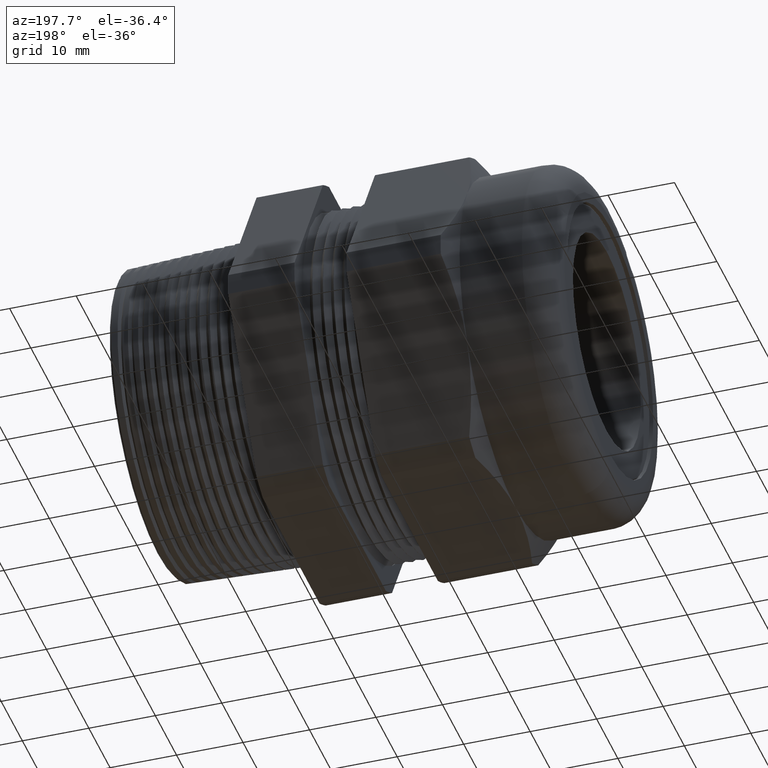
[diagram: clean part render]
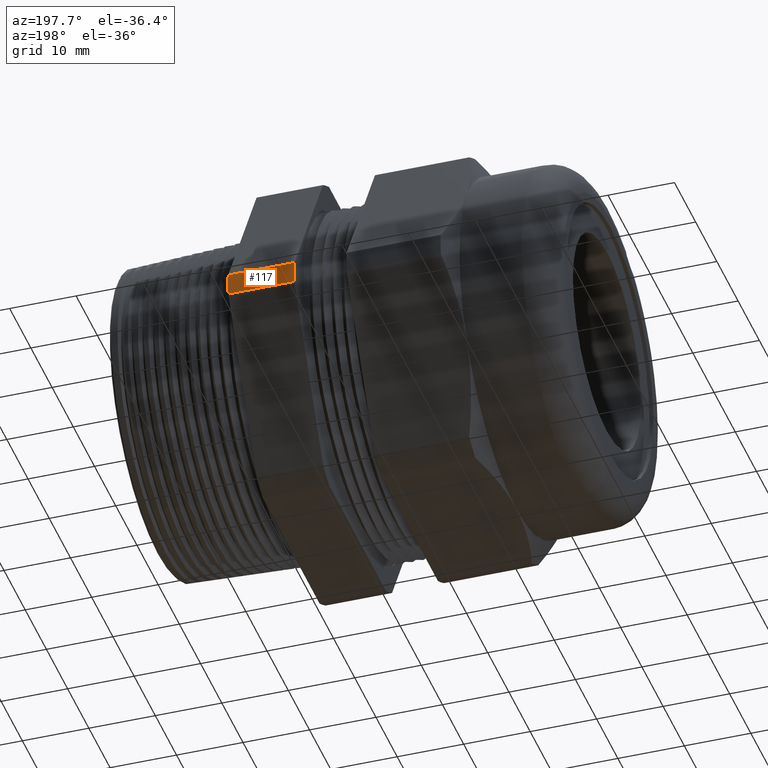
[diagram: same view with one face highlighted and labeled with its STEP entity id]
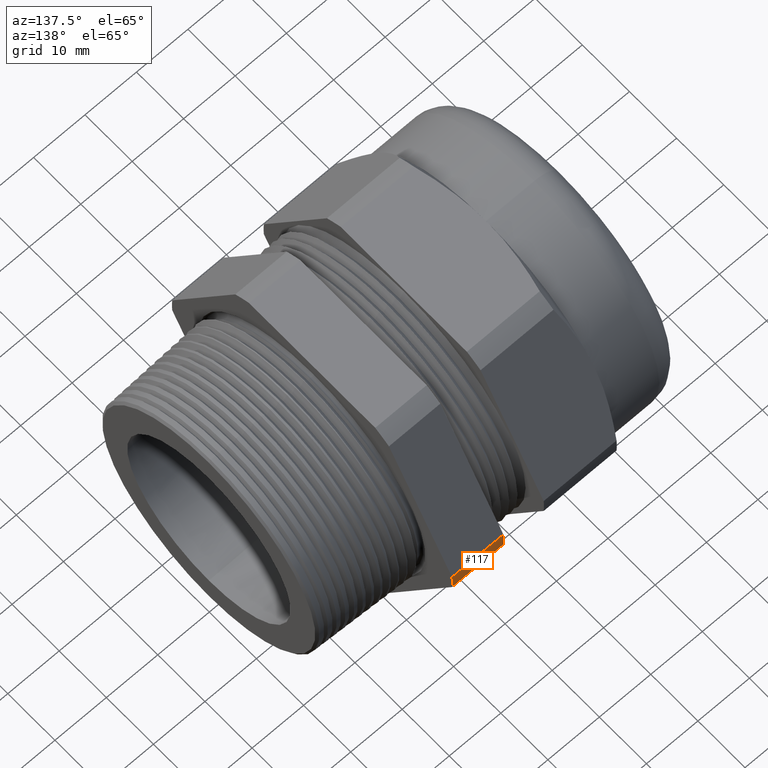
[diagram: same view with one face highlighted and labeled with its STEP entity id]
A machine part, auxiliary view. The second image highlights one B-rep face of the part: STEP entity #117.
A second angle (auxiliary view) of the same face is appended — the face is thin or edge-on in the first view.
In plain terms, the highlighted cylindrical surface (partial cylindrical patch) has radius 29.7282 mm, axis along (-1, 0, 0).
Its self-contained STEP definition (entity closure, byte-faithful):
#58 = EDGE_LOOP ( 'NONE', ( #119, #116, #114, #102 ) ) ;
#102 = ORIENTED_EDGE ( 'NONE', *, *, #4219, .T. ) ;
#110 = EDGE_CURVE ( 'NONE', #112, #4215, #1423, .T. ) ;
#112 = VERTEX_POINT ( 'NONE', #1415 ) ;
#113 = EDGE_CURVE ( 'NONE', #120, #4194, #1414, .T. ) ;
#114 = ORIENTED_EDGE ( 'NONE', *, *, #110, .T. ) ;
#115 = EDGE_CURVE ( 'NONE', #112, #120, #1410, .T. ) ;
#116 = ORIENTED_EDGE ( 'NONE', *, *, #115, .F. ) ;
#117 = ADVANCED_FACE ( 'NONE', ( #1405 ), #1404, .T. ) ;
#119 = ORIENTED_EDGE ( 'NONE', *, *, #113, .F. ) ;
#120 = VERTEX_POINT ( 'NONE', #1456 ) ;
#1399 = DIRECTION ( 'NONE',  ( 0.0000000000000000000, 0.0000000000000000000, 1.000000000000000000 ) ) ;
#1400 = DIRECTION ( 'NONE',  ( -1.000000000000000000, 0.0000000000000000000, 0.0000000000000000000 ) ) ;
#1401 = CARTESIAN_POINT ( 'NONE',  ( -0.7238591030180623300, 0.0000000000000000000, 0.0000000000000000000 ) ) ;
#1402 = AXIS2_PLACEMENT_3D ( 'NONE', #1401, #1400, #1399 ) ;
#1404 = CYLINDRICAL_SURFACE ( 'NONE', #1402, 1.170400000000000100 ) ;
#1405 = FACE_OUTER_BOUND ( 'NONE', #58, .T. ) ;
#1406 = DIRECTION ( 'NONE',  ( 0.0000000000000000000, 0.0000000000000000000, 1.000000000000000000 ) ) ;
#1407 = DIRECTION ( 'NONE',  ( -1.000000000000000000, 0.0000000000000000000, 0.0000000000000000000 ) ) ;
#1408 = CARTESIAN_POINT ( 'NONE',  ( -0.3930348258706468100, 0.0000000000000000000, 0.0000000000000000000 ) ) ;
#1409 = AXIS2_PLACEMENT_3D ( 'NONE', #1408, #1407, #1406 ) ;
#1410 = CIRCLE ( 'NONE', #1409, 1.170400000000000100 ) ;
#1411 = DIRECTION ( 'NONE',  ( 1.000000000000000000, 0.0000000000000000000, 0.0000000000000000000 ) ) ;
#1412 = VECTOR ( 'NONE', #1411, 39.37007874015748100 ) ;
#1413 = CARTESIAN_POINT ( 'NONE',  ( -4.674745017870971100, 1.168535519404735100, -0.06603710994211078900 ) ) ;
#1414 = LINE ( 'NONE', #1413, #1412 ) ;
#1415 = CARTESIAN_POINT ( 'NONE',  ( -0.3930348258706468100, 1.168535519404735300, 0.06603710994211133000 ) ) ;
#1416 = DIRECTION ( 'NONE',  ( 1.000000000000000000, 0.0000000000000000000, 0.0000000000000000000 ) ) ;
#1417 = VECTOR ( 'NONE', #1416, 39.37007874015748100 ) ;
#1418 = CARTESIAN_POINT ( 'NONE',  ( -4.674745017870971100, 1.168535519404735100, 0.06603710994211087200 ) ) ;
#1423 = LINE ( 'NONE', #1418, #1417 ) ;
#1456 = CARTESIAN_POINT ( 'NONE',  ( -0.3930348258706468100, 1.168535519404735100, -0.06603710994211078900 ) ) ;
#3573 = CARTESIAN_POINT ( 'NONE',  ( 0.0000000000000000000, 1.168535519404735100, -0.06603710994211078900 ) ) ;
#3601 = DIRECTION ( 'NONE',  ( 0.0000000000000000000, 0.0000000000000000000, 1.000000000000000000 ) ) ;
#3602 = DIRECTION ( 'NONE',  ( -1.000000000000000000, 0.0000000000000000000, 0.0000000000000000000 ) ) ;
#3603 = CARTESIAN_POINT ( 'NONE',  ( 0.0000000000000000000, 0.0000000000000000000, 0.0000000000000000000 ) ) ;
#3604 = AXIS2_PLACEMENT_3D ( 'NONE', #3603, #3602, #3601 ) ;
#3605 = CIRCLE ( 'NONE', #3604, 1.170400000000000100 ) ;
#3615 = CARTESIAN_POINT ( 'NONE',  ( 0.0000000000000000000, 1.168535519404735100, 0.06603710994211087200 ) ) ;
#4194 = VERTEX_POINT ( 'NONE', #3573 ) ;
#4215 = VERTEX_POINT ( 'NONE', #3615 ) ;
#4219 = EDGE_CURVE ( 'NONE', #4215, #4194, #3605, .T. ) ;